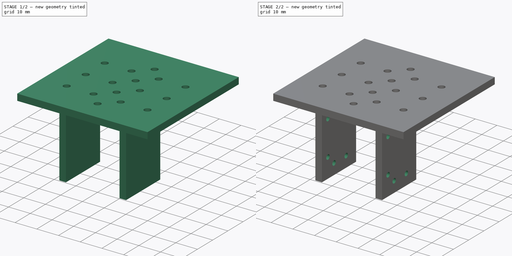
[diagram: build sequence overview — one tinted view per stage of 2, left to right]
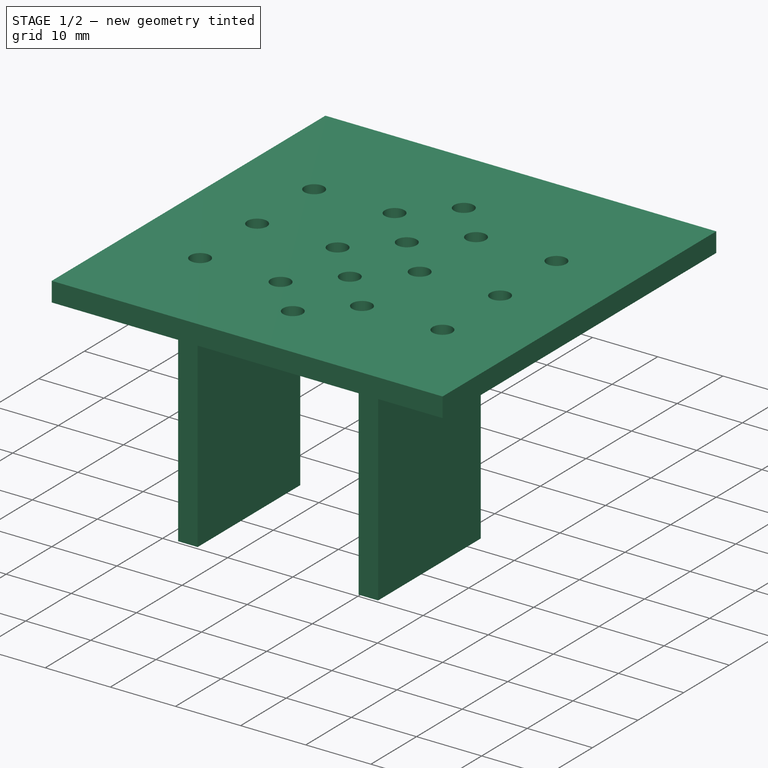
[diagram: stage 1 of 2 — iso view after this stage's code; geometry added in this stage tinted green]
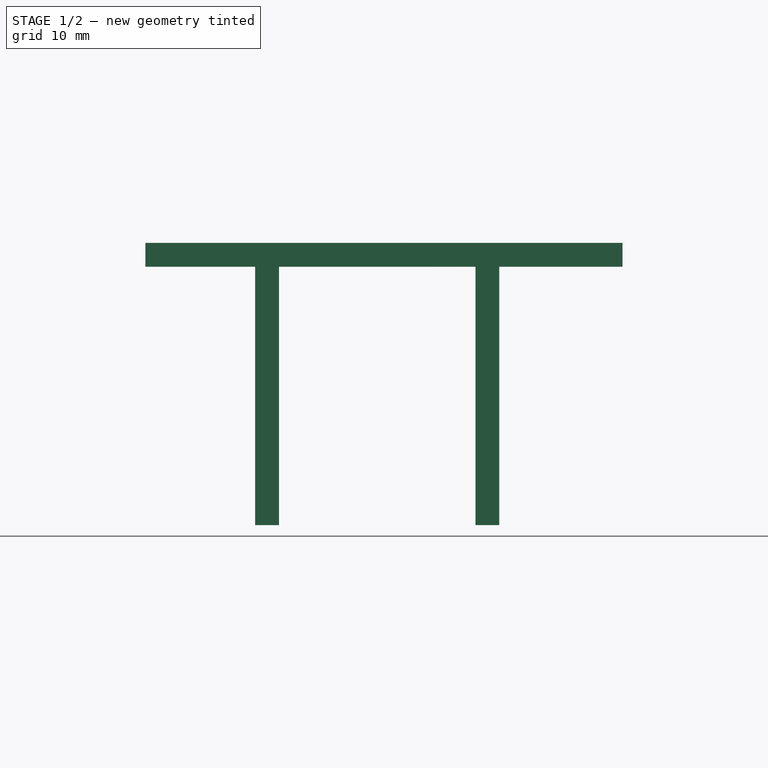
[diagram: stage 1 of 2 — front view after this stage's code; geometry added in this stage tinted green]
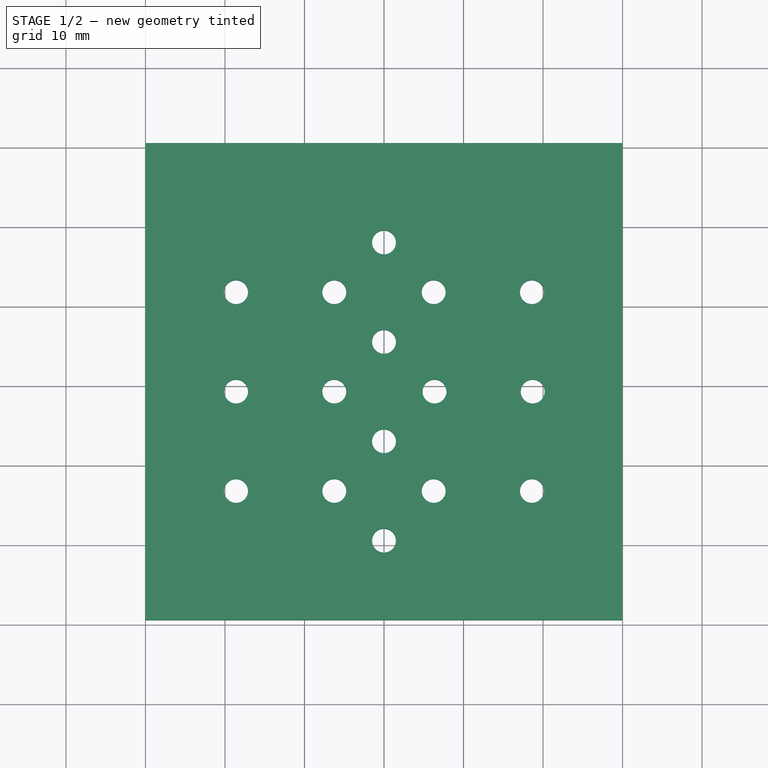
[diagram: stage 1 of 2 — top view after this stage's code; geometry added in this stage tinted green]
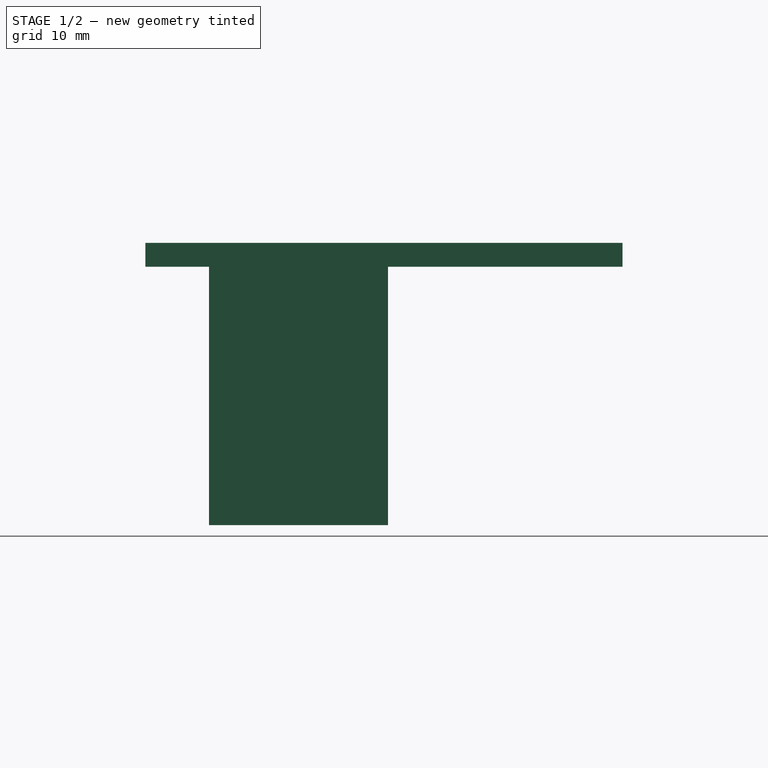
[diagram: stage 1 of 2 — right view after this stage's code; geometry added in this stage tinted green]
FCSTD DOCUMENT  (FreeCAD 0.21R33771 (Git))
Label: servo_head_connection
License: All rights reserved
LicenseURL: https://en.wikipedia.org/wiki/All_rights_reserved
objects: Sketcher::SketchObject×3, PartDesign::Pad×2, PartDesign::Pocket×1, PartDesign::Body×1
note: 10 computed .brp shape members not serialized (recipe doc carries the construction recipe); baked Part::Feature solids carry a one-line shape summary decoded from their .brp

FEATURE [Sketcher::SketchObject] Sketch
  FullyConstrained = true
  sketch-geometry (20):
    g0: LineSegment StartX=-30 StartY=30 StartZ=0 EndX=30 EndY=30 EndZ=0
    g1: LineSegment StartX=30 StartY=30 StartZ=0 EndX=30 EndY=-30 EndZ=0
    g2: LineSegment StartX=30 StartY=-30 StartZ=0 EndX=-30 EndY=-30 EndZ=0
    g3: LineSegment StartX=-30 StartY=-30 StartZ=0 EndX=-30 EndY=30 EndZ=0
    g4: Circle CenterX=0 CenterY=17.5 CenterZ=0 NormalX=0 NormalY=0 NormalZ=1 AngleXU=0 Radius=1.5
    g5: Circle CenterX=0 CenterY=5 CenterZ=0 NormalX=0 NormalY=0 NormalZ=1 AngleXU=0 Radius=1.5
    g6: Circle CenterX=0 CenterY=-7.5 CenterZ=0 NormalX=0 NormalY=0 NormalZ=1 AngleXU=0 Radius=1.5
    g7: Circle CenterX=0 CenterY=-20 CenterZ=0 NormalX=0 NormalY=0 NormalZ=1 AngleXU=0 Radius=1.5
    g8: Circle CenterX=-6.25 CenterY=11.25 CenterZ=0 NormalX=0 NormalY=0 NormalZ=1 AngleXU=0 Radius=1.5
    g9: Circle CenterX=-18.6 CenterY=11.25 CenterZ=0 NormalX=0 NormalY=0 NormalZ=1 AngleXU=0 Radius=1.5
    g10: Circle CenterX=6.25 CenterY=11.25 CenterZ=0 NormalX=0 NormalY=0 NormalZ=1 AngleXU=0 Radius=1.5
    g11: Circle CenterX=18.6 CenterY=11.25 CenterZ=0 NormalX=0 NormalY=0 NormalZ=1 AngleXU=0 Radius=1.5
    g12: Circle CenterX=-18.6 CenterY=-1.25 CenterZ=0 NormalX=0 NormalY=0 NormalZ=1 AngleXU=0 Radius=1.5
    g13: Circle CenterX=-18.6 CenterY=-13.75 CenterZ=0 NormalX=0 NormalY=0 NormalZ=1 AngleXU=0 Radius=1.5
    g14: Circle CenterX=18.7 CenterY=-1.25 CenterZ=0 NormalX=0 NormalY=0 NormalZ=1 AngleXU=0 Radius=1.5
    g15: Circle CenterX=18.6 CenterY=-13.75 CenterZ=0 NormalX=0 NormalY=0 NormalZ=1 AngleXU=0 Radius=1.5
    g16: Circle CenterX=-6.25 CenterY=-13.75 CenterZ=0 NormalX=0 NormalY=0 NormalZ=1 AngleXU=0 Radius=1.5
    g17: Circle CenterX=6.25 CenterY=-13.75 CenterZ=0 NormalX=0 NormalY=0 NormalZ=1 AngleXU=0 Radius=1.5
    g18: Circle CenterX=-6.25 CenterY=-1.25 CenterZ=0 NormalX=0 NormalY=0 NormalZ=1 AngleXU=0 Radius=1.5
    g19: Circle CenterX=6.35 CenterY=-1.25 CenterZ=0 NormalX=0 NormalY=0 NormalZ=1 AngleXU=0 Radius=1.5
  constraints (60):
    c: Coincident(g0,g1)
    c: Coincident(g1,g2)
    c: Coincident(g2,g3)
    c: Coincident(g3,g0)
    c: Horizontal(g0)
    c: Horizontal(g2)
    c: Vertical(g1)
    c: Vertical(g3)
    c: DistanceY(g1,g1) = 60
    c: DistanceX(g0,g0) = 60
    c: DistanceY(g-1,g0) = 30
    c: DistanceX(g2,g-1) = 30
    c: Radius(g4) = 1.5
    c: DistanceX(g4,g-1) = 0
    c: DistanceY(g4,g0) = 12.5
    c: PointOnObject(g5,g-2)
    c: Radius(g5) = 1.5
    c: DistanceY(g5,g4) = 12.5
    c: PointOnObject(g6,g-2)
    c: PointOnObject(g7,g-2)
    c: Radius(g6) = 1.5
    c: Radius(g7) = 1.5
    c: DistanceY(g7,g6) = 12.5
    c: DistanceY(g6,g5) = 12.5
    c: Radius(g10) = 1.5
    c: Radius(g11) = 1.5
    c: Radius(g8) = 1.5
    c: Radius(g9) = 1.5
    c: DistanceY(g10,g4) = 6.25
    c: DistanceX(g4,g10) = 6.25
    c: DistanceX(g8,g10) = 12.5
    c: DistanceY(g10,g8) = 0
    c: DistanceY(g11,g10) = 0
    c: DistanceX(g10,g11) = 12.35
    c: DistanceY(g9,g8) = 0
    c: DistanceX(g9,g8) = 12.35
    c: Radius(g19) = 1.5
    c: Radius(g18) = 1.5
    c: Radius(g14) = 1.5
    c: Radius(g12) = 1.5
    c: Radius(g13) = 1.5
    c: Radius(g16) = 1.5
    c: Radius(g17) = 1.5
    c: Radius(g15) = 1.5
    c: DistanceY(g18,g5) = 6.25
    c: DistanceX(g18,g5) = 6.25
    c: DistanceY(g19,g18) = 0
    c: DistanceX(g18,g19) = 12.6
    c: DistanceY(g14,g18) = 0
    c: DistanceY(g19,g12) = 0
    c: DistanceX(g19,g14) = 12.35
    c: DistanceX(g12,g18) = 12.35
    c: DistanceX(g6,g17) = 6.25
    c: DistanceY(g17,g6) = 6.25
    c: DistanceY(g17,g13) = 0
    c: DistanceY(g13,g15) = 0
    c: DistanceY(g17,g16) = 0
    c: DistanceX(g16,g17) = 12.5
    c: DistanceX(g13,g16) = 12.35
    c: DistanceX(g17,g15) = 12.35
FEATURE [PartDesign::Pad] Pad
  Direction = (0,0,1)
  Length = 3
  Length2 = 10
  Profile = -> Sketch
  ReferenceAxis = -> Sketch [N_Axis]
  Type = 0
FEATURE [Sketcher::SketchObject] Sketch001
  ExternalGeometry = -> [Pad]
  FullyConstrained = true
  MapMode = 5
  Placement = pos=(0,0,0) rot=(1,0,0;3.14159rad)
  Support = -> [Pad]
  sketch-geometry (8):
    g0: LineSegment StartX=-16.2 StartY=22 StartZ=0 EndX=-13.2 EndY=22 EndZ=0
    g1: LineSegment StartX=-13.2 StartY=22 StartZ=0 EndX=-13.2 EndY=-0.5 EndZ=0
    g2: LineSegment StartX=-13.2 StartY=-0.5 StartZ=0 EndX=-16.2 EndY=-0.5 EndZ=0
    g3: LineSegment StartX=-16.2 StartY=-0.5 StartZ=0 EndX=-16.2 EndY=22 EndZ=0
    g4: LineSegment StartX=11.5 StartY=22 StartZ=0 EndX=14.5 EndY=22 EndZ=0
    g5: LineSegment StartX=14.5 StartY=22 StartZ=0 EndX=14.5 EndY=-0.5 EndZ=0
    g6: LineSegment StartX=14.5 StartY=-0.5 StartZ=0 EndX=11.5 EndY=-0.5 EndZ=0
    g7: LineSegment StartX=11.5 StartY=-0.5 StartZ=0 EndX=11.5 EndY=22 EndZ=0
  constraints (24):
    c: Coincident(g0,g1)
    c: Coincident(g1,g2)
    c: Coincident(g2,g3)
    c: Coincident(g3,g0)
    c: Horizontal(g0)
    c: Horizontal(g2)
    c: Vertical(g1)
    c: Vertical(g3)
    c: DistanceX(g0,g0) = 3
    c: DistanceY(g1,g1) = 22.5
    c: Coincident(g4,g5)
    c: Coincident(g5,g6)
    c: Coincident(g6,g7)
    c: Coincident(g7,g4)
    c: Horizontal(g4)
    c: Horizontal(g6)
    c: Vertical(g5)
    c: Vertical(g7)
    c: DistanceX(g4,g4) = 3
    c: DistanceY(g5,g5) = 22.5
    c: DistanceY(g0,g-3) = 8
    c: DistanceY(g4,g-3) = 8
    c: DistanceX(g0,g4) = 24.7
    c: DistanceX(g4,g-4) = 15.5
FEATURE [PartDesign::Pad] Pad001
  BaseFeature = -> Pad
  Direction = (0,0,-1)
  Length = 32.5
  Length2 = 10
  Profile = -> Sketch001
  ReferenceAxis = -> Sketch001 [N_Axis]
  Type = 0
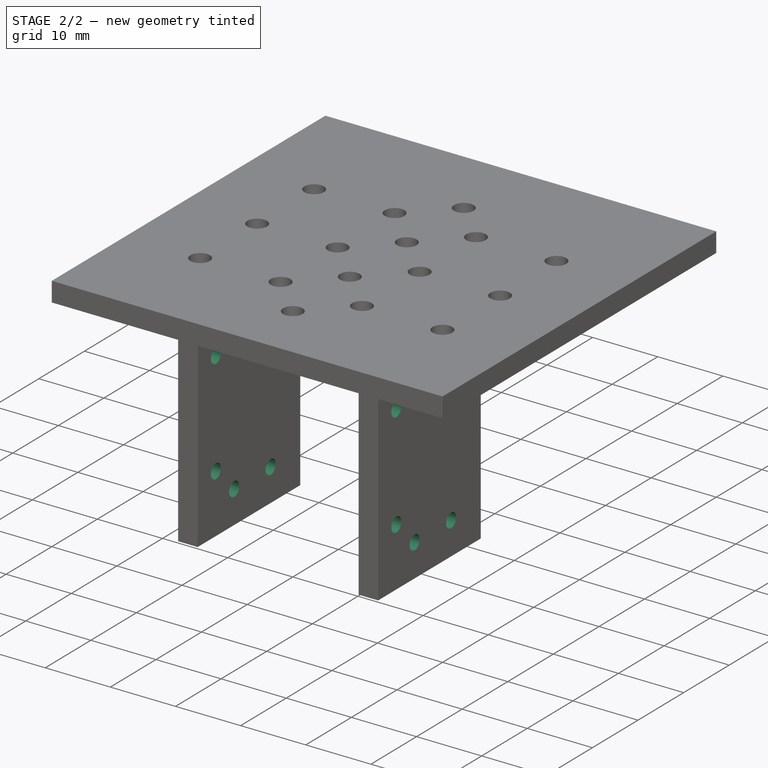
[diagram: stage 2 of 2 — iso view after this stage's code; geometry added in this stage tinted green]
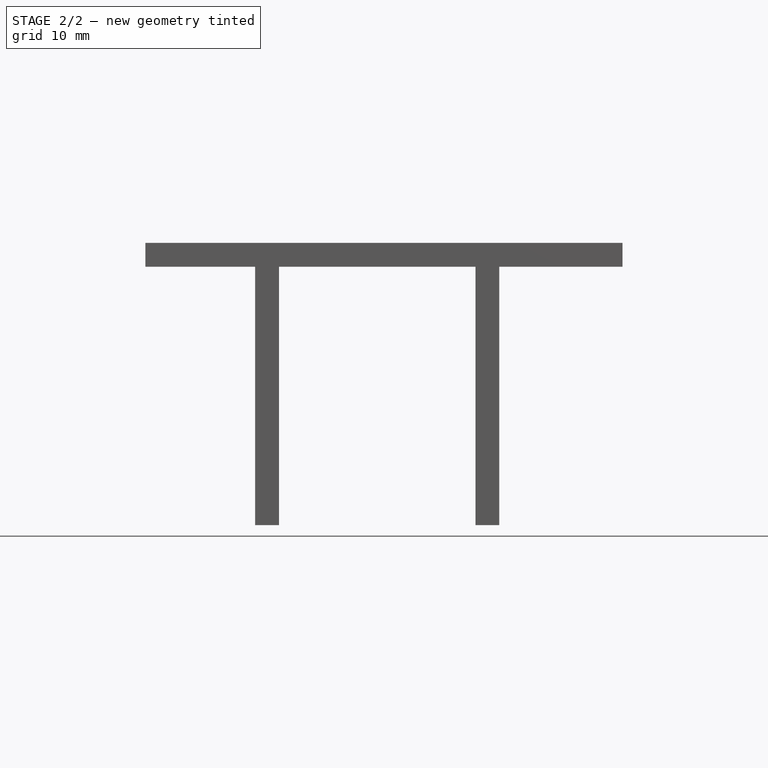
[diagram: stage 2 of 2 — front view after this stage's code; geometry added in this stage tinted green]
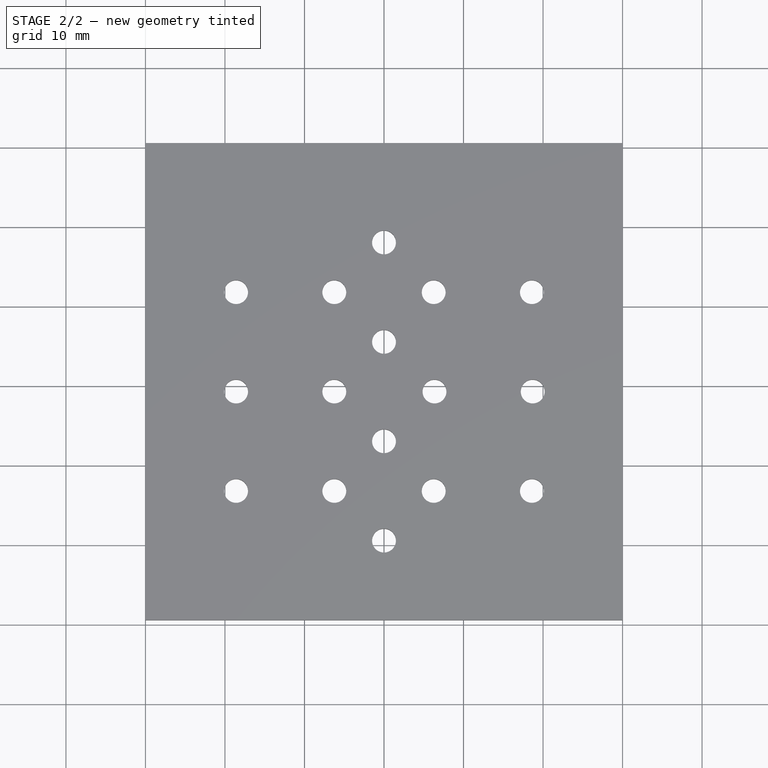
[diagram: stage 2 of 2 — top view after this stage's code; geometry added in this stage tinted green]
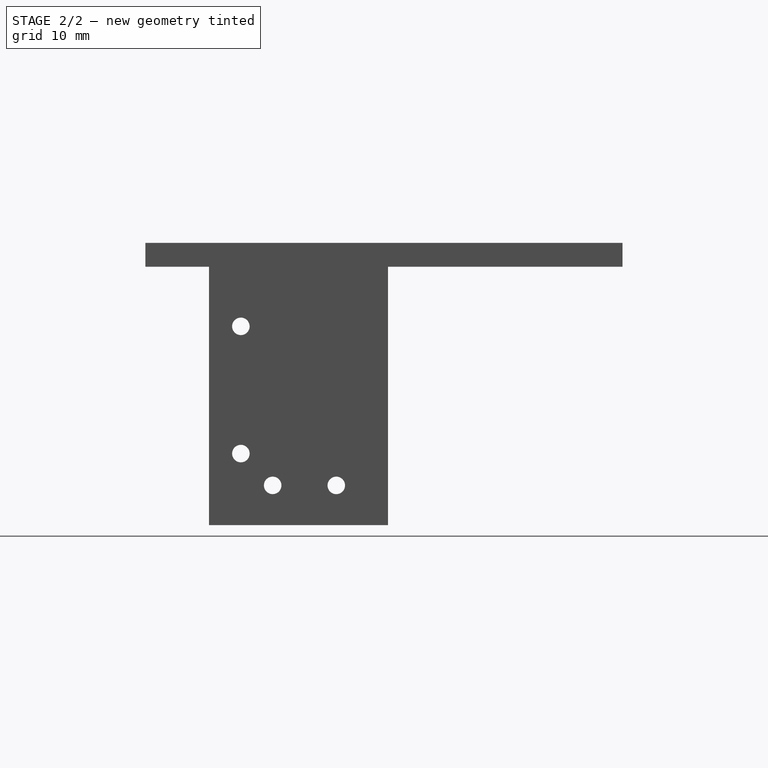
[diagram: stage 2 of 2 — right view after this stage's code; geometry added in this stage tinted green]
FEATURE [Sketcher::SketchObject] Sketch002
  ExternalGeometry = -> [Pad001]
  FullyConstrained = true
  MapMode = 5
  Placement = pos=(14.5,0,0) rot=(0.57735,0.57735,0.57735;2.0944rad)
  Support = -> [Pad001]
  sketch-geometry (4):
    g0: Circle CenterX=-18 CenterY=-23.5 CenterZ=0 NormalX=0 NormalY=0 NormalZ=1 AngleXU=0 Radius=1.1
    g1: Circle CenterX=-6 CenterY=-27.5 CenterZ=0 NormalX=0 NormalY=0 NormalZ=1 AngleXU=0 Radius=1.1
    g2: Circle CenterX=-18 CenterY=-7.5 CenterZ=0 NormalX=0 NormalY=0 NormalZ=1 AngleXU=0 Radius=1.1
    g3: Circle CenterX=-14 CenterY=-27.5 CenterZ=0 NormalX=0 NormalY=0 NormalZ=1 AngleXU=0 Radius=1.1
  constraints (12):
    c: DistanceX(g-4,g3) = 8
    c: Radius(g3) = 1.1
    c: Radius(g1) = 1.1
    c: Radius(g2) = 1.1
    c: Radius(g0) = 1.1
    c: DistanceY(g-4,g3) = 5
    c: DistanceY(g-4,g1) = 5
    c: DistanceX(g3,g1) = 8
    c: DistanceY(g3,g0) = 4
    c: DistanceX(g0,g3) = 4
    c: DistanceY(g0,g2) = 16
    c: DistanceX(g0,g2) = 0
FEATURE [PartDesign::Pocket] Pocket
  BaseFeature = -> Pad001
  Direction = (-1,0,0)
  Length = 60
  Length2 = 5
  Profile = -> Sketch002
  ReferenceAxis = -> Sketch002 [N_Axis]
  Type = 0
FEATURE [PartDesign::Body] Body
  Group = -> [Sketch,Pad,Sketch001,Pad001,Sketch002,Pocket]
  Origin = -> Origin
  Tip = -> Pocket
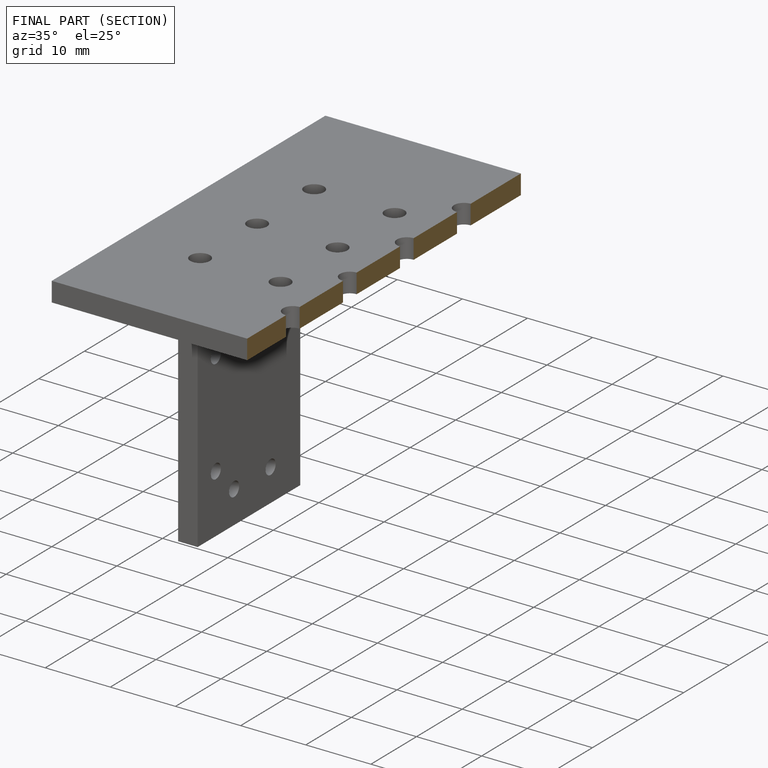
[diagram: finished part — half-section view (interior)]
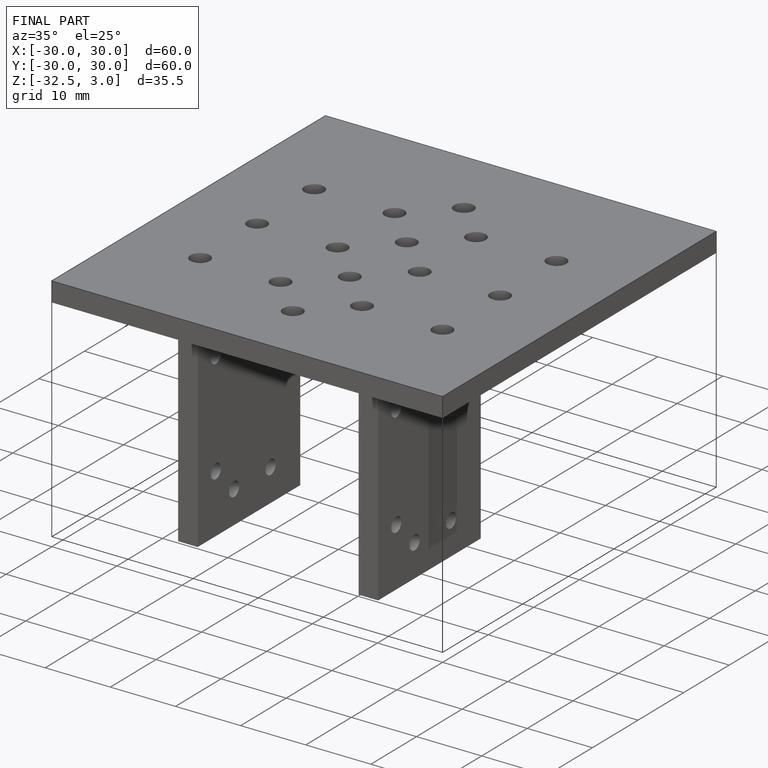
[diagram: finished part — iso view with bounding-box wireframe]
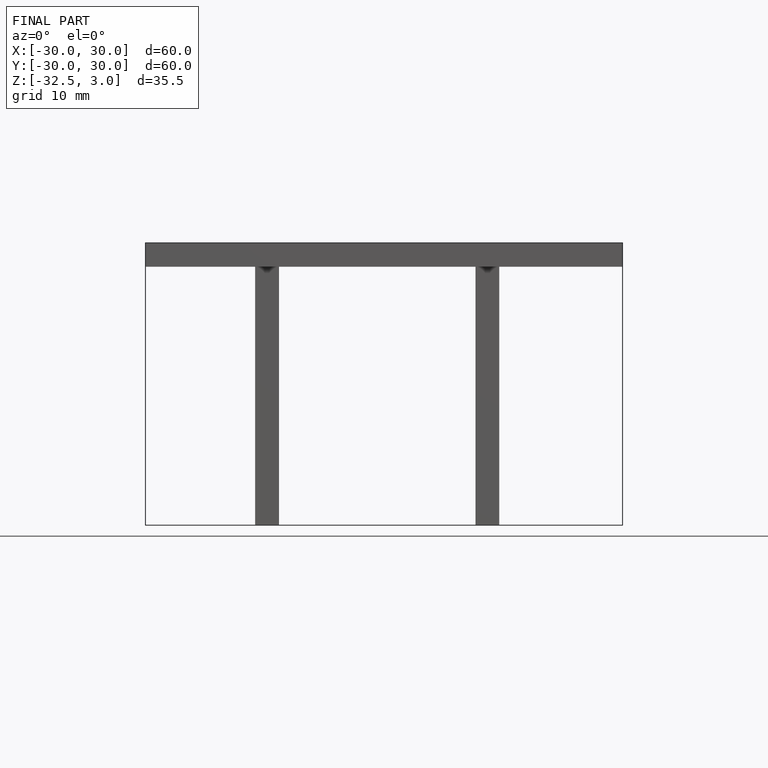
[diagram: finished part — front view with bounding-box wireframe]
